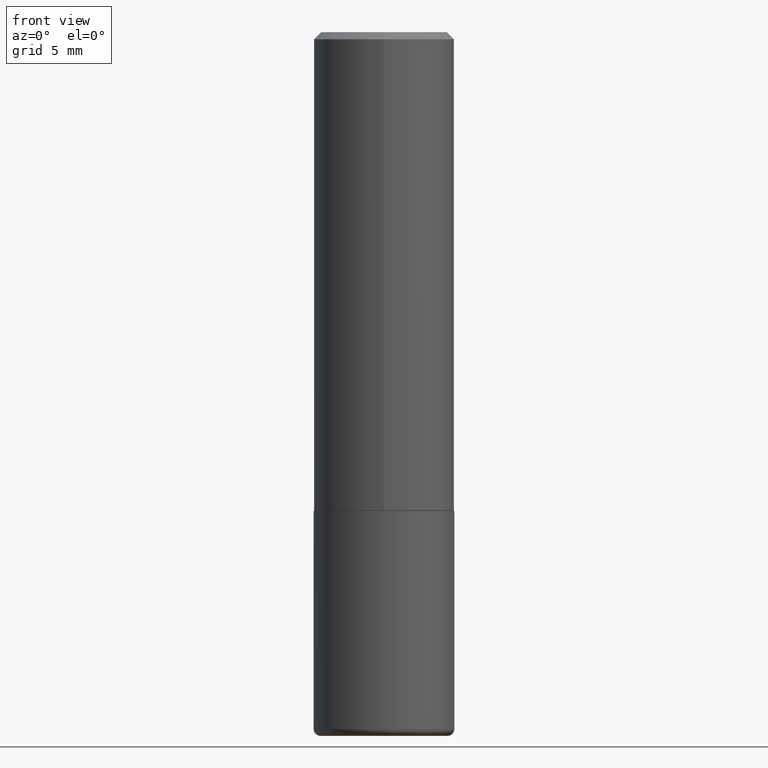
[diagram: clean part render]
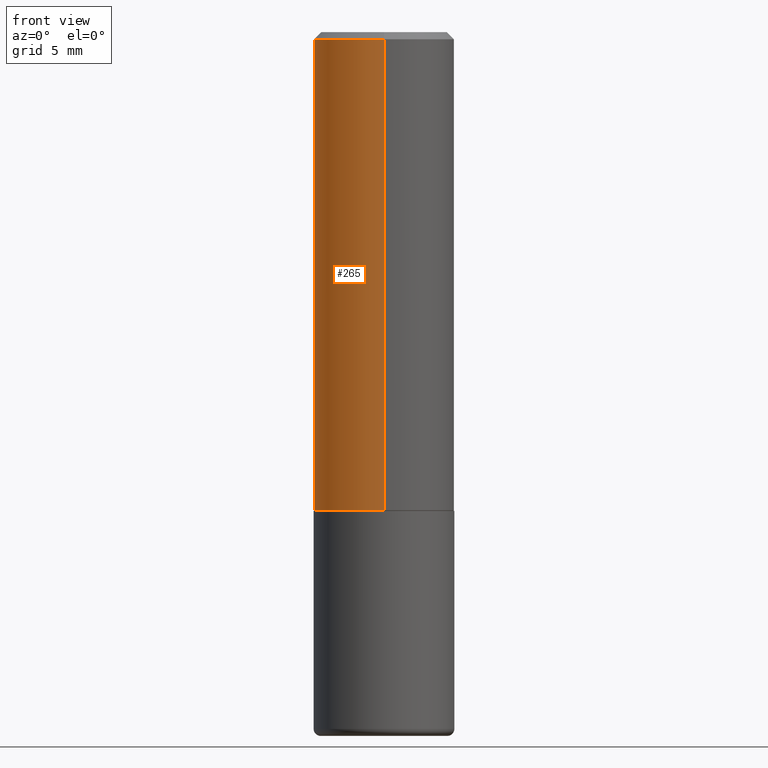
[diagram: same view with one face highlighted and labeled with its STEP entity id]
A machine part, front view. The second image highlights one B-rep face of the part: STEP entity #265.
In plain terms, the highlighted cylindrical surface (partial cylindrical patch) has radius 5 mm, axis along (-0, 0, 1).
Its self-contained STEP definition (entity closure, byte-faithful):
#18 = VERTEX_POINT ( 'NONE', #142 ) ;
#21 = CARTESIAN_POINT ( 'NONE',  ( 0.000000000000000000, 0.000000000000000000, 0.000000000000000000 ) ) ;
#43 = VECTOR ( 'NONE', #209, 39.37007874015748143 ) ;
#49 = EDGE_CURVE ( 'NONE', #98, #218, #65, .T. ) ;
#55 = FACE_OUTER_BOUND ( 'NONE', #126, .T. ) ;
#65 = CIRCLE ( 'NONE', #193, 0.1968500000000001360 ) ;
#86 = DIRECTION ( 'NONE',  ( -6.982962677686265133E-15, -1.000000000000000000, 3.491137977679279029E-15 ) ) ;
#89 = CARTESIAN_POINT ( 'NONE',  ( 4.893060799195852986E-31, -6.979922153307800258E-17, -0.02000000000000004205 ) ) ;
#90 = CARTESIAN_POINT ( 'NONE',  ( -1.374596203102509659E-15, -0.1968500000000048267, -1.337599999999999234 ) ) ;
#92 = AXIS2_PLACEMENT_3D ( 'NONE', #21, #187, #115 ) ;
#93 = VECTOR ( 'NONE', #377, 39.37007874015748143 ) ;
#98 = VERTEX_POINT ( 'NONE', #196 ) ;
#115 = DIRECTION ( 'NONE',  ( -6.982962677686265922E-15, -1.000000000000000000, 3.489961076653893646E-15 ) ) ;
#119 = CARTESIAN_POINT ( 'NONE',  ( -1.350489030861325626E-15, -0.1968500000000001082, -0.01999999999999935510 ) ) ;
#121 = CARTESIAN_POINT ( 'NONE',  ( 1.398703375343757788E-15, 0.1968500000000001082, -6.869988379393193333E-16 ) ) ;
#125 = ORIENTED_EDGE ( 'NONE', *, *, #188, .T. ) ;
#126 = EDGE_LOOP ( 'NONE', ( #138, #372, #125, #160 ) ) ;
#128 = CIRCLE ( 'NONE', #221, 0.1968500000000000527 ) ;
#138 = ORIENTED_EDGE ( 'NONE', *, *, #407, .F. ) ;
#142 = CARTESIAN_POINT ( 'NONE',  ( 1.374596203102542200E-15, 0.1968499999999999694, -0.02000000000000072900 ) ) ;
#160 = ORIENTED_EDGE ( 'NONE', *, *, #409, .F. ) ;
#171 = LINE ( 'NONE', #217, #43 ) ;
#187 = DIRECTION ( 'NONE',  ( -2.446530399597921291E-29, 3.489961076653893251E-15, 1.000000000000000000 ) ) ;
#188 = EDGE_CURVE ( 'NONE', #218, #214, #171, .T. ) ;
#193 = AXIS2_PLACEMENT_3D ( 'NONE', #400, #231, #358 ) ;
#196 = CARTESIAN_POINT ( 'NONE',  ( 1.398703375343774551E-15, 0.1968499999999954730, -1.337600000000000788 ) ) ;
#209 = DIRECTION ( 'NONE',  ( -2.446530399597921291E-29, 3.489961076653892857E-15, 1.000000000000000000 ) ) ;
#212 = DIRECTION ( 'NONE',  ( -2.446530399597921291E-29, 3.489961076653893251E-15, 1.000000000000000000 ) ) ;
#214 = VERTEX_POINT ( 'NONE', #119 ) ;
#217 = CARTESIAN_POINT ( 'NONE',  ( -1.374596203102542200E-15, -0.1968500000000001082, 6.869988379393193333E-16 ) ) ;
#218 = VERTEX_POINT ( 'NONE', #90 ) ;
#221 = AXIS2_PLACEMENT_3D ( 'NONE', #89, #212, #86 ) ;
#231 = DIRECTION ( 'NONE',  ( -2.446530399597921291E-29, 3.489961076653893251E-15, 1.000000000000000000 ) ) ;
#265 = ADVANCED_FACE ( 'NONE', ( #55 ), #343, .T. ) ;
#309 = LINE ( 'NONE', #121, #93 ) ;
#343 = CYLINDRICAL_SURFACE ( 'NONE', #92, 0.1968500000000001082 ) ;
#358 = DIRECTION ( 'NONE',  ( -6.982962677686265922E-15, -1.000000000000000000, 4.163344669033672479E-15 ) ) ;
#372 = ORIENTED_EDGE ( 'NONE', *, *, #49, .T. ) ;
#377 = DIRECTION ( 'NONE',  ( -2.446530399597921291E-29, 3.489961076653892857E-15, 1.000000000000000000 ) ) ;
#400 = CARTESIAN_POINT ( 'NONE',  ( 3.272479062502179524E-29, -4.668171936132247256E-15, -1.337599999999999900 ) ) ;
#407 = EDGE_CURVE ( 'NONE', #98, #18, #309, .T. ) ;
#409 = EDGE_CURVE ( 'NONE', #18, #214, #128, .T. ) ;